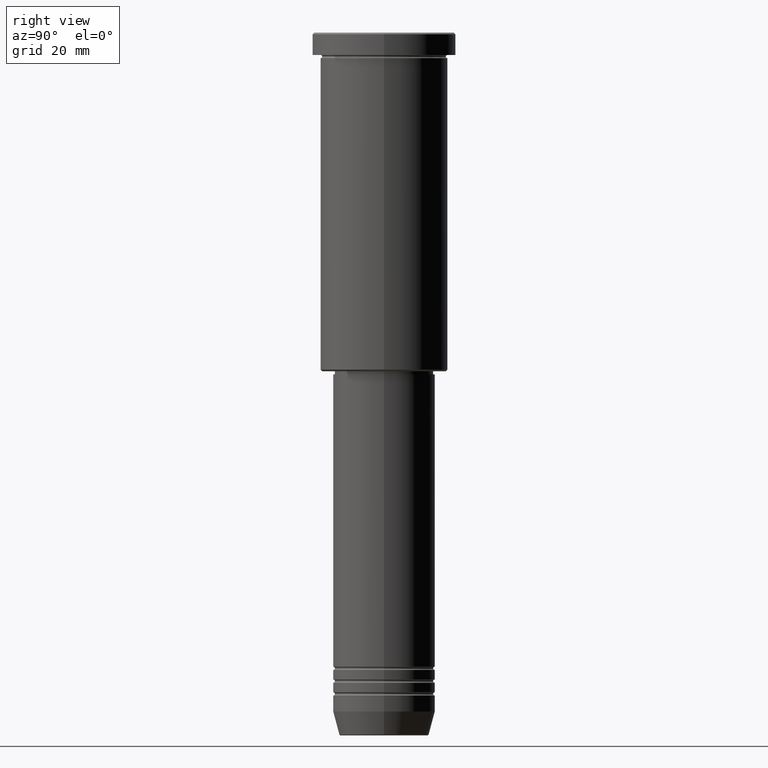
[diagram: clean part render]
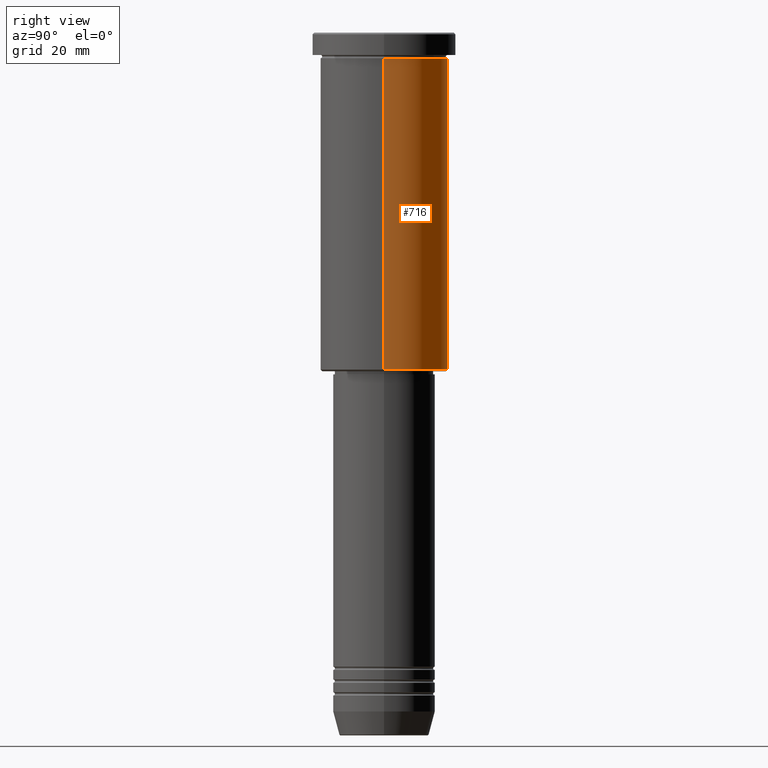
[diagram: same view with one face highlighted and labeled with its STEP entity id]
A machine part, right view. The second image highlights one B-rep face of the part: STEP entity #716.
In plain terms, the highlighted cylindrical surface (partial cylindrical patch) has radius 20 mm, axis along (-0, -0, 1).
Its self-contained STEP definition (entity closure, byte-faithful):
#27 = DIRECTION ( 'NONE',  ( 1.000000000000000000, 0.000000000000000000, 0.000000000000000000 ) ) ;
#31 = DIRECTION ( 'NONE',  ( -0.000000000000000000, -0.000000000000000000, 1.000000000000000000 ) ) ;
#53 = DIRECTION ( 'NONE',  ( -0.000000000000000000, -0.000000000000000000, 1.000000000000000000 ) ) ;
#159 = CARTESIAN_POINT ( 'NONE',  ( -20.00000000000000355, 2.449293598294706907E-15, 0.000000000000000000 ) ) ;
#206 = ORIENTED_EDGE ( 'NONE', *, *, #1072, .F. ) ;
#234 = CYLINDRICAL_SURFACE ( 'NONE', #1070, 20.00000000000000355 ) ;
#244 = ORIENTED_EDGE ( 'NONE', *, *, #270, .F. ) ;
#270 = EDGE_CURVE ( 'NONE', #1099, #907, #438, .T. ) ;
#281 = ORIENTED_EDGE ( 'NONE', *, *, #300, .T. ) ;
#293 = DIRECTION ( 'NONE',  ( -0.000000000000000000, -0.000000000000000000, 1.000000000000000000 ) ) ;
#300 = EDGE_CURVE ( 'NONE', #364, #658, #888, .T. ) ;
#309 = DIRECTION ( 'NONE',  ( -1.000000000000000000, 0.000000000000000000, 0.000000000000000000 ) ) ;
#364 = VERTEX_POINT ( 'NONE', #531 ) ;
#415 = VECTOR ( 'NONE', #53, 1000.000000000000000 ) ;
#438 = LINE ( 'NONE', #878, #780 ) ;
#480 = ORIENTED_EDGE ( 'NONE', *, *, #1095, .T. ) ;
#510 = DIRECTION ( 'NONE',  ( 1.000000000000000000, 0.000000000000000000, 0.000000000000000000 ) ) ;
#529 = DIRECTION ( 'NONE',  ( -0.000000000000000000, -0.000000000000000000, 1.000000000000000000 ) ) ;
#531 = CARTESIAN_POINT ( 'NONE',  ( -20.00000000000000355, 2.449293598294706907E-15, -105.4999999999999289 ) ) ;
#549 = CARTESIAN_POINT ( 'NONE',  ( 20.00000000000000000, 0.000000000000000000, -7.999999999999994671 ) ) ;
#567 = CARTESIAN_POINT ( 'NONE',  ( 0.000000000000000000, 0.000000000000000000, -105.4999999999999289 ) ) ;
#611 = EDGE_LOOP ( 'NONE', ( #480, #281, #206, #244 ) ) ;
#658 = VERTEX_POINT ( 'NONE', #1024 ) ;
#716 = ADVANCED_FACE ( 'NONE', ( #951 ), #234, .T. ) ;
#765 = AXIS2_PLACEMENT_3D ( 'NONE', #848, #293, #27 ) ;
#780 = VECTOR ( 'NONE', #987, 1000.000000000000000 ) ;
#785 = AXIS2_PLACEMENT_3D ( 'NONE', #567, #31, #309 ) ;
#848 = CARTESIAN_POINT ( 'NONE',  ( 0.000000000000000000, 0.000000000000000000, -7.999999999999994671 ) ) ;
#856 = CIRCLE ( 'NONE', #765, 20.00000000000000000 ) ;
#874 = CIRCLE ( 'NONE', #785, 20.00000000000000355 ) ;
#878 = CARTESIAN_POINT ( 'NONE',  ( 20.00000000000000355, 0.000000000000000000, 0.000000000000000000 ) ) ;
#888 = LINE ( 'NONE', #159, #415 ) ;
#907 = VERTEX_POINT ( 'NONE', #549 ) ;
#951 = FACE_OUTER_BOUND ( 'NONE', #611, .T. ) ;
#964 = CARTESIAN_POINT ( 'NONE',  ( 0.000000000000000000, 0.000000000000000000, 0.000000000000000000 ) ) ;
#987 = DIRECTION ( 'NONE',  ( -0.000000000000000000, -0.000000000000000000, 1.000000000000000000 ) ) ;
#1024 = CARTESIAN_POINT ( 'NONE',  ( -20.00000000000000000, 2.449293598294706513E-15, -7.999999999999994671 ) ) ;
#1027 = CARTESIAN_POINT ( 'NONE',  ( 20.00000000000000355, 0.000000000000000000, -105.4999999999999289 ) ) ;
#1070 = AXIS2_PLACEMENT_3D ( 'NONE', #964, #529, #510 ) ;
#1072 = EDGE_CURVE ( 'NONE', #907, #658, #856, .T. ) ;
#1095 = EDGE_CURVE ( 'NONE', #1099, #364, #874, .T. ) ;
#1099 = VERTEX_POINT ( 'NONE', #1027 ) ;